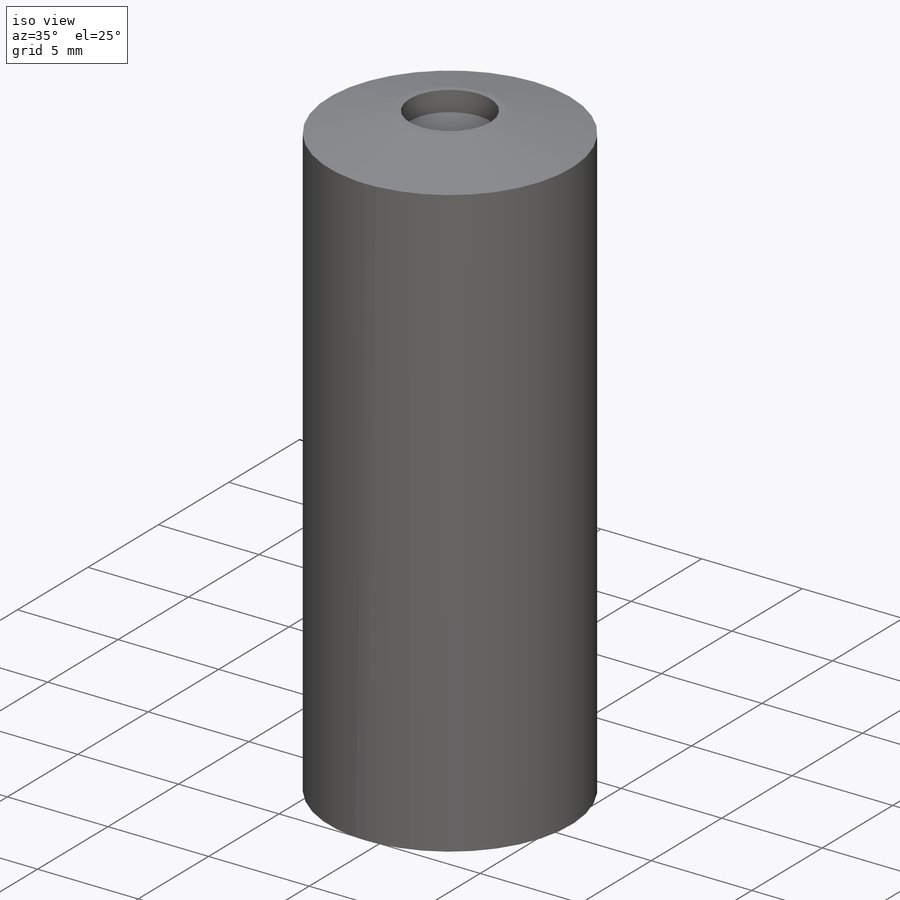
[diagram: iso view]
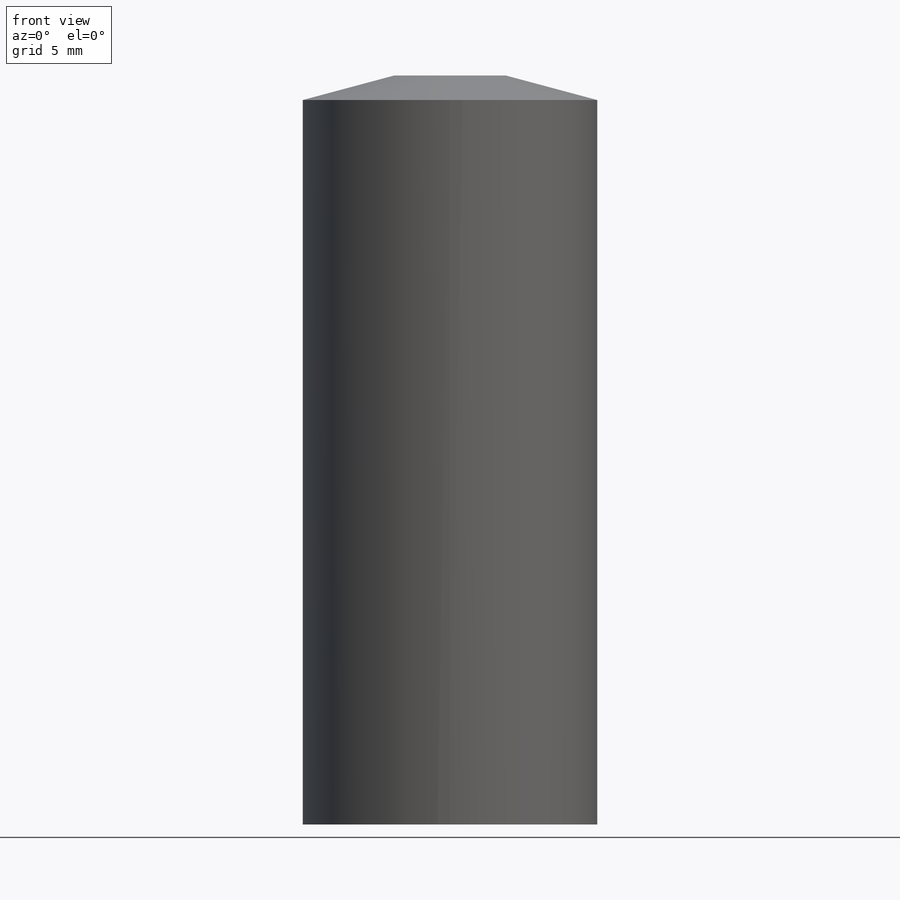
[diagram: front view]
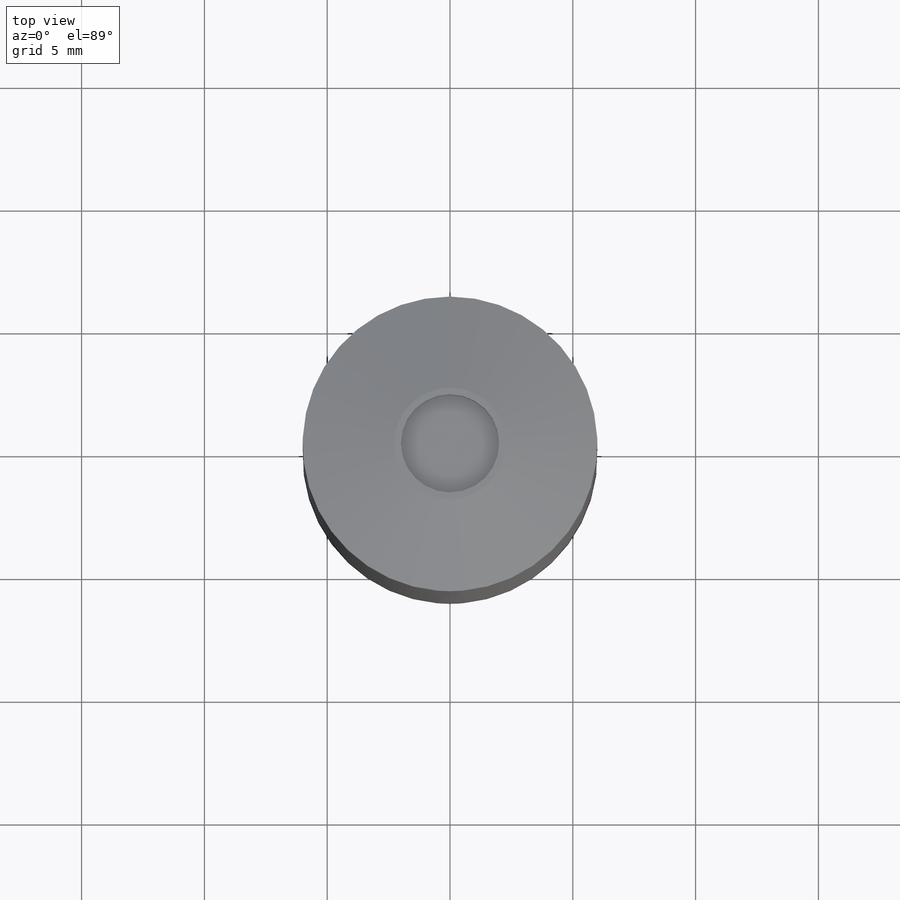
[diagram: top view]
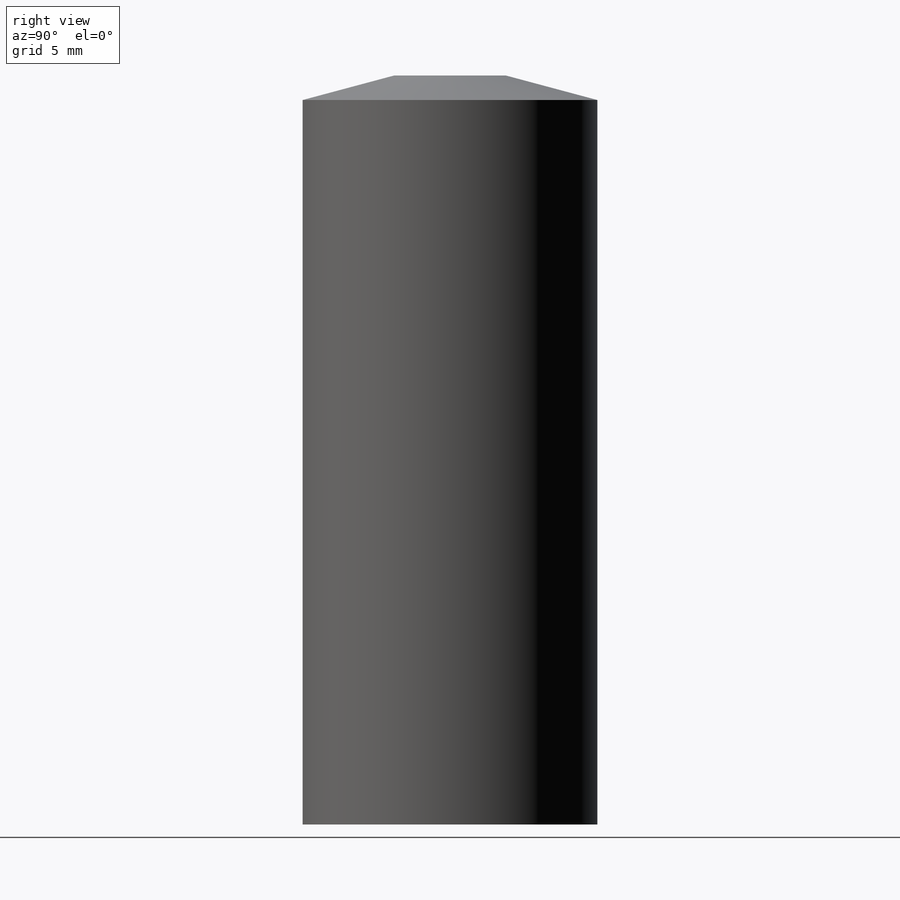
[diagram: right view]
SOLIDWORKS PART (.sldprt)
format: sldprt  version: not decoded by parser v0  size: 139,264 bytes
history: native  units: mm
features: plane x3, sketch x2, material x1, extrude x1, chamfer x1, cut_extrude x1 (+12 scaffold rows collapsed)
feature tree (21):
  scaffold x12  (default folders/planes/origin — collapsed)
  material  "Matériau <non spécifié>"
  plane  "Plan de face"
  plane  "Plan de dessus"
  plane  "Plan de droite"
  sketch  "Esquisse1"  dims[D1=12.0mm]
  extrude  "Extrusion1"  Depth=30.5mm
  chamfer  "Chanfrein1"  Distance=1mm Angle=75deg
  sketch  "Esquisse2"  dims[D1=4.0mm]
  cut_extrude  "Enlèv. mat.-Extru.1"  Depth=1mm
decode coverage: 5 of 5 modeling features carry decoded parameters
note: suppression state not decoded; provenance and decode notes live in map.json
